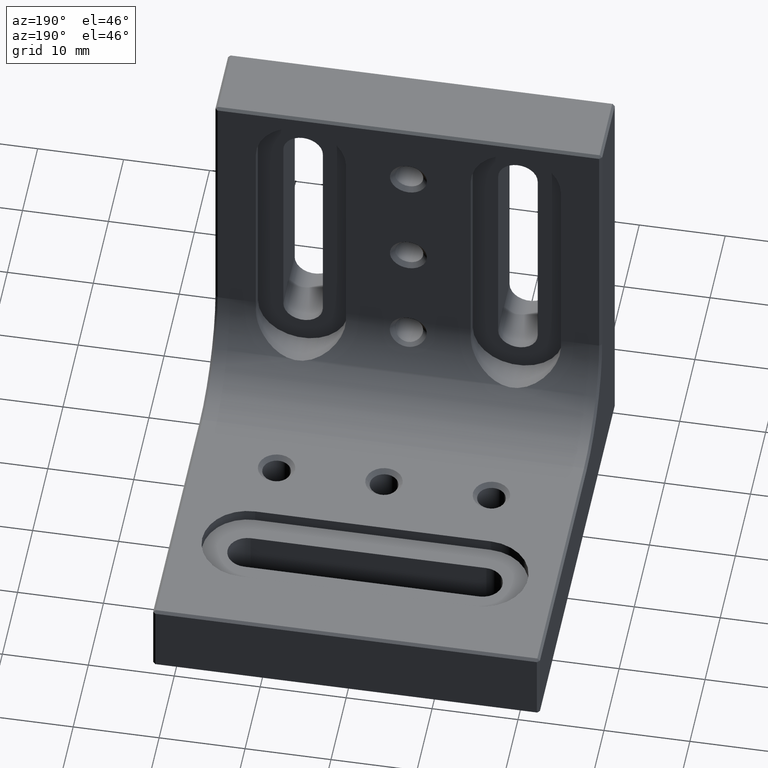
[diagram: clean part render]
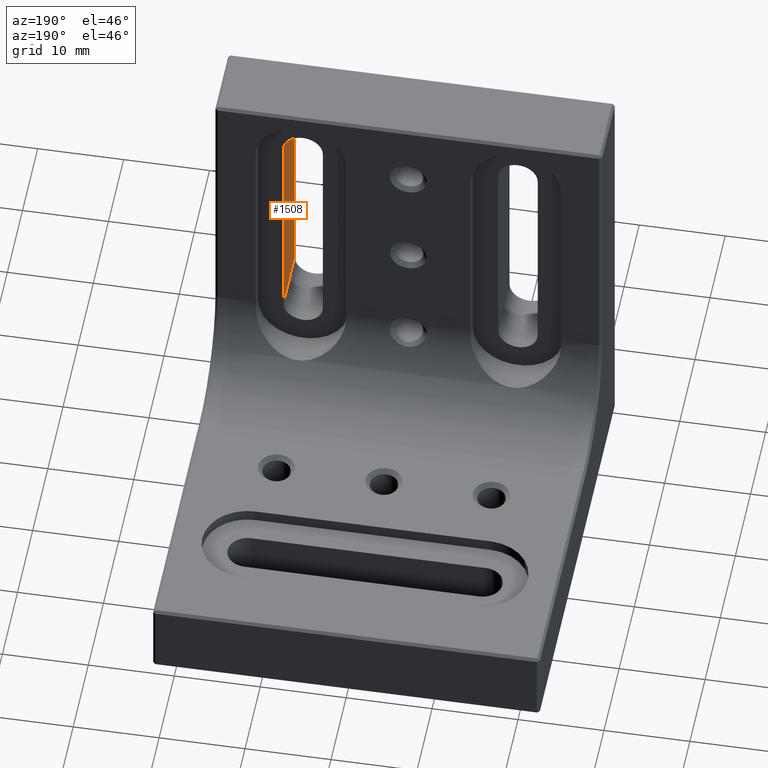
[diagram: same view with one face highlighted and labeled with its STEP entity id]
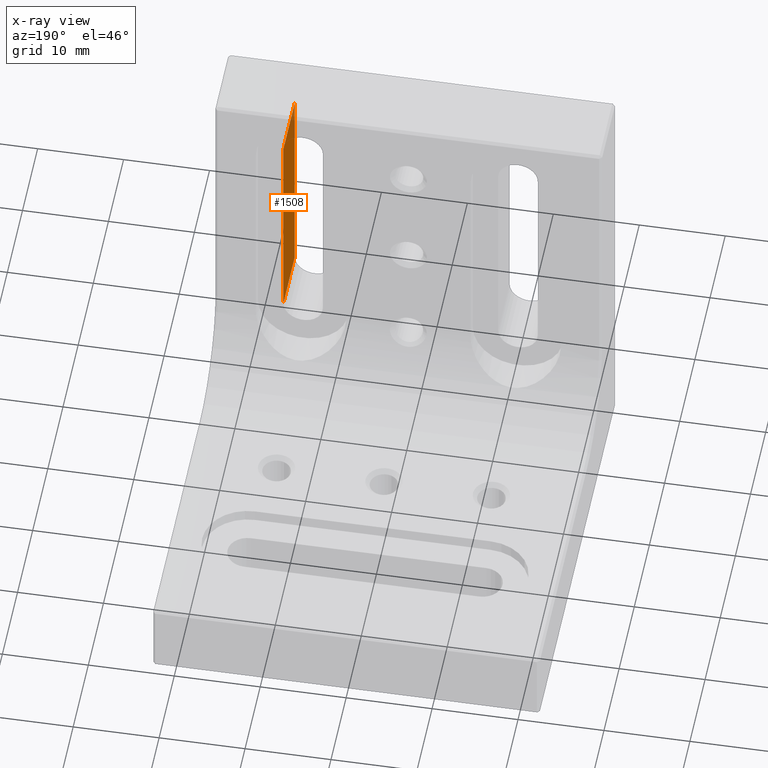
[diagram: x-ray of the same camera — body ghosted, the highlighted face saturated]
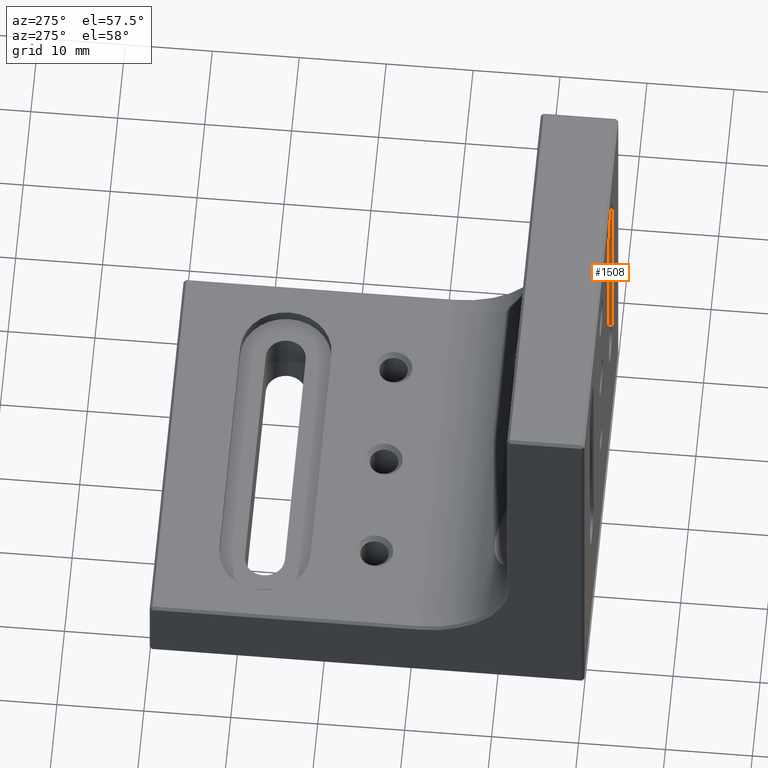
[diagram: same view with one face highlighted and labeled with its STEP entity id]
A machine part, auxiliary view. The second image highlights one B-rep face of the part: STEP entity #1508.
The next image is the same camera in x-ray: the body ghosted, the highlighted face saturated — about 6% of this face is hidden behind the body in this view.
A second angle (auxiliary view) of the same face is appended — the face is thin or edge-on in the first view.
In plain terms, the highlighted planar face has unit normal (1, 0, -0).
Its self-contained STEP definition (entity closure, byte-faithful):
#62 = DIRECTION ( 'NONE',  ( -0.000000000000000000, 1.000000000000000000, -0.000000000000000000 ) ) ;
#129 = DIRECTION ( 'NONE',  ( 2.048885995248197660E-16, -1.224646799147353454E-16, 1.000000000000000000 ) ) ;
#204 = EDGE_CURVE ( 'NONE', #1193, #1720, #2122, .T. ) ;
#224 = DIRECTION ( 'NONE',  ( 1.000000000000000000, 0.000000000000000000, -2.048885995248197414E-16 ) ) ;
#246 = DIRECTION ( 'NONE',  ( -0.000000000000000000, 1.000000000000000000, -0.000000000000000000 ) ) ;
#278 = VECTOR ( 'NONE', #656, 1000.000000000000000 ) ;
#378 = LINE ( 'NONE', #1238, #278 ) ;
#656 = DIRECTION ( 'NONE',  ( -2.048885995248197414E-16, -0.000000000000000000, -1.000000000000000000 ) ) ;
#882 = LINE ( 'NONE', #1428, #2549 ) ;
#1013 = ORIENTED_EDGE ( 'NONE', *, *, #2435, .T. ) ;
#1113 = LINE ( 'NONE', #2501, #1127 ) ;
#1127 = VECTOR ( 'NONE', #246, 1000.000000000000000 ) ;
#1161 = CARTESIAN_POINT ( 'NONE',  ( 14.80000000000001492, 7.499999999999993783, 43.18999999999999773 ) ) ;
#1175 = VERTEX_POINT ( 'NONE', #3019 ) ;
#1193 = VERTEX_POINT ( 'NONE', #1323 ) ;
#1238 = CARTESIAN_POINT ( 'NONE',  ( 14.80000000000000426, -6.938893903907228378E-15, 17.78999999999999559 ) ) ;
#1323 = CARTESIAN_POINT ( 'NONE',  ( 14.80000000000000249, 7.499999999999996447, 17.78999999999999559 ) ) ;
#1370 = DIRECTION ( 'NONE',  ( -2.048885995248197414E-16, 0.000000000000000000, -1.000000000000000000 ) ) ;
#1428 = CARTESIAN_POINT ( 'NONE',  ( 14.80000000000000426, -6.938893903907228378E-15, 17.78999999999999559 ) ) ;
#1508 = ADVANCED_FACE ( 'NONE', ( #1960 ), #1605, .F. ) ;
#1605 = PLANE ( 'NONE',  #2735 ) ;
#1617 = VERTEX_POINT ( 'NONE', #2896 ) ;
#1634 = EDGE_CURVE ( 'NONE', #1175, #1193, #882, .T. ) ;
#1720 = VERTEX_POINT ( 'NONE', #1161 ) ;
#1763 = EDGE_CURVE ( 'NONE', #1617, #1175, #378, .T. ) ;
#1960 = FACE_OUTER_BOUND ( 'NONE', #2450, .T. ) ;
#2122 = LINE ( 'NONE', #2697, #3339 ) ;
#2435 = EDGE_CURVE ( 'NONE', #1617, #1720, #1113, .T. ) ;
#2450 = EDGE_LOOP ( 'NONE', ( #2899, #2857, #3217, #1013 ) ) ;
#2501 = CARTESIAN_POINT ( 'NONE',  ( 14.80000000000001492, -6.938893903907228378E-15, 43.18999999999999773 ) ) ;
#2549 = VECTOR ( 'NONE', #62, 1000.000000000000000 ) ;
#2697 = CARTESIAN_POINT ( 'NONE',  ( 14.80000000000000426, 7.499999999999996447, 17.78999999999999559 ) ) ;
#2735 = AXIS2_PLACEMENT_3D ( 'NONE', #3643, #224, #1370 ) ;
#2857 = ORIENTED_EDGE ( 'NONE', *, *, #1634, .F. ) ;
#2896 = CARTESIAN_POINT ( 'NONE',  ( 14.80000000000001492, -6.938893903907228378E-15, 43.18999999999999773 ) ) ;
#2899 = ORIENTED_EDGE ( 'NONE', *, *, #204, .F. ) ;
#3019 = CARTESIAN_POINT ( 'NONE',  ( 14.80000000000000426, -6.938893903907228378E-15, 17.78999999999999559 ) ) ;
#3217 = ORIENTED_EDGE ( 'NONE', *, *, #1763, .F. ) ;
#3339 = VECTOR ( 'NONE', #129, 1000.000000000000000 ) ;
#3643 = CARTESIAN_POINT ( 'NONE',  ( 14.80000000000000426, -6.938893903907228378E-15, 17.78999999999999559 ) ) ;